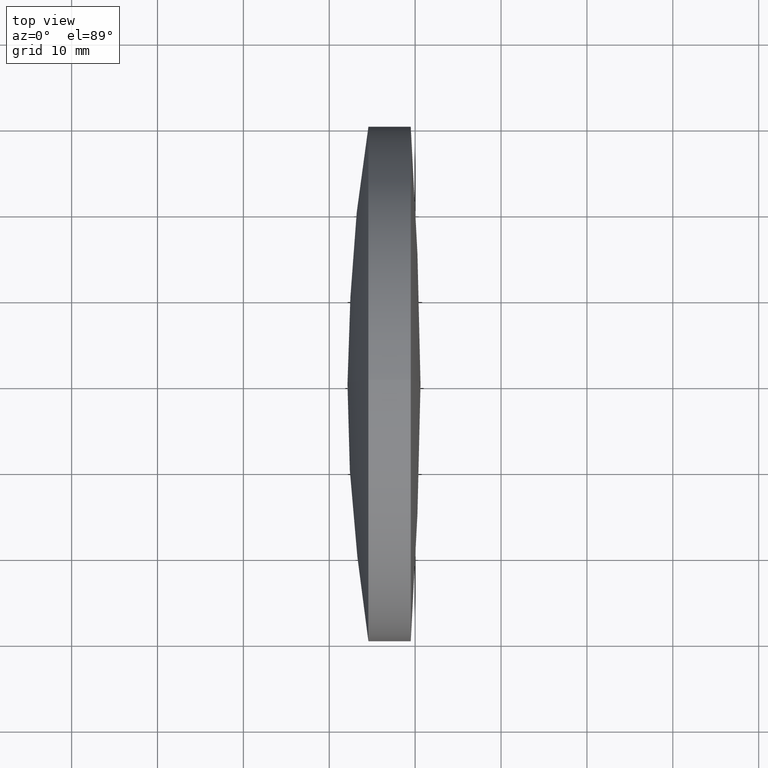
[diagram: clean part render]
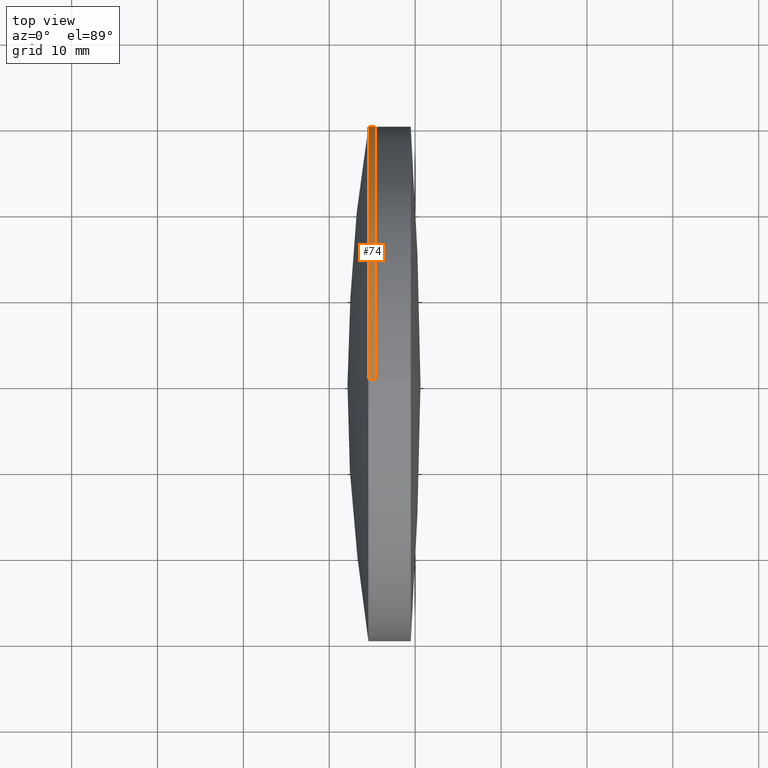
[diagram: same view with one face highlighted and labeled with its STEP entity id]
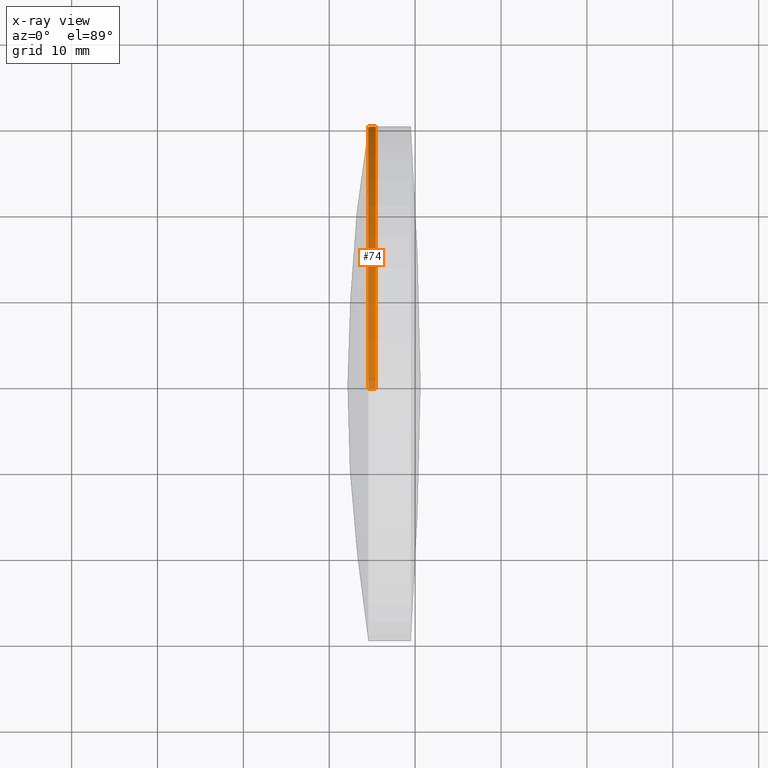
[diagram: x-ray of the same camera — body ghosted, the highlighted face saturated]
A machine part, top view. The second image highlights one B-rep face of the part: STEP entity #74.
The next image is the same camera in x-ray: the body ghosted, the highlighted face saturated — about 3% of this face is hidden behind the body in this view.
In plain terms, the highlighted cylindrical surface (partial cylindrical patch) has radius 30 mm, axis along (-1, -0, -0).
Its self-contained STEP definition (entity closure, byte-faithful):
#1 = DIRECTION ( 'NONE',  ( 0.0000000000000000000, 0.0000000000000000000, 1.000000000000000000 ) ) ;
#8 = EDGE_LOOP ( 'NONE', ( #78, #44, #138, #329 ) ) ;
#44 = ORIENTED_EDGE ( 'NONE', *, *, #191, .T. ) ;
#48 = DIRECTION ( 'NONE',  ( 0.0000000000000000000, 0.0000000000000000000, 1.000000000000000000 ) ) ;
#51 = CARTESIAN_POINT ( 'NONE',  ( 124.5233095260452400, 0.0000000000000000000, 0.0000000000000000000 ) ) ;
#52 = VERTEX_POINT ( 'NONE', #142 ) ;
#56 = CYLINDRICAL_SURFACE ( 'NONE', #224, 29.99999999999999600 ) ;
#65 = CARTESIAN_POINT ( 'NONE',  ( 335.4079976636520000, 3.673940397442059200E-015, -29.99999999999999600 ) ) ;
#68 = FACE_OUTER_BOUND ( 'NONE', #8, .T. ) ;
#70 = DIRECTION ( 'NONE',  ( 0.0000000000000000000, 0.0000000000000000000, 1.000000000000000000 ) ) ;
#74 = ADVANCED_FACE ( 'NONE', ( #68 ), #56, .T. ) ;
#78 = ORIENTED_EDGE ( 'NONE', *, *, #164, .T. ) ;
#83 = DIRECTION ( 'NONE',  ( -1.000000000000000000, -0.0000000000000000000, -0.0000000000000000000 ) ) ;
#87 = VERTEX_POINT ( 'NONE', #343 ) ;
#110 = AXIS2_PLACEMENT_3D ( 'NONE', #291, #236, #1 ) ;
#111 = CIRCLE ( 'NONE', #110, 29.99999999999999600 ) ;
#114 = VECTOR ( 'NONE', #176, 1000.000000000000000 ) ;
#125 = LINE ( 'NONE', #275, #114 ) ;
#138 = ORIENTED_EDGE ( 'NONE', *, *, #324, .F. ) ;
#142 = CARTESIAN_POINT ( 'NONE',  ( 335.4079976636520000, 0.0000000000000000000, 29.99999999999999600 ) ) ;
#146 = AXIS2_PLACEMENT_3D ( 'NONE', #226, #83, #70 ) ;
#164 = EDGE_CURVE ( 'NONE', #52, #210, #168, .T. ) ;
#168 = CIRCLE ( 'NONE', #146, 29.99999999999999600 ) ;
#176 = DIRECTION ( 'NONE',  ( -1.000000000000000000, -0.0000000000000000000, -0.0000000000000000000 ) ) ;
#191 = EDGE_CURVE ( 'NONE', #210, #201, #125, .T. ) ;
#201 = VERTEX_POINT ( 'NONE', #254 ) ;
#210 = VERTEX_POINT ( 'NONE', #65 ) ;
#216 = DIRECTION ( 'NONE',  ( -1.000000000000000000, -0.0000000000000000000, -0.0000000000000000000 ) ) ;
#224 = AXIS2_PLACEMENT_3D ( 'NONE', #51, #277, #48 ) ;
#226 = CARTESIAN_POINT ( 'NONE',  ( 335.4079976636520000, 0.0000000000000000000, 0.0000000000000000000 ) ) ;
#236 = DIRECTION ( 'NONE',  ( -1.000000000000000000, -0.0000000000000000000, -0.0000000000000000000 ) ) ;
#254 = CARTESIAN_POINT ( 'NONE',  ( 334.5565971191825300, 3.673940397442056800E-015, -29.99999999999998200 ) ) ;
#266 = VECTOR ( 'NONE', #216, 1000.000000000000000 ) ;
#275 = CARTESIAN_POINT ( 'NONE',  ( 124.5233095260452400, 3.673940397442059200E-015, -29.99999999999999600 ) ) ;
#276 = LINE ( 'NONE', #313, #266 ) ;
#277 = DIRECTION ( 'NONE',  ( -1.000000000000000000, -0.0000000000000000000, -0.0000000000000000000 ) ) ;
#288 = EDGE_CURVE ( 'NONE', #52, #87, #276, .T. ) ;
#291 = CARTESIAN_POINT ( 'NONE',  ( 334.5565971191825300, 0.0000000000000000000, 0.0000000000000000000 ) ) ;
#313 = CARTESIAN_POINT ( 'NONE',  ( 124.5233095260452400, 0.0000000000000000000, 29.99999999999999600 ) ) ;
#324 = EDGE_CURVE ( 'NONE', #87, #201, #111, .T. ) ;
#329 = ORIENTED_EDGE ( 'NONE', *, *, #288, .F. ) ;
#343 = CARTESIAN_POINT ( 'NONE',  ( 334.5565971191825300, 0.0000000000000000000, 29.99999999999997900 ) ) ;